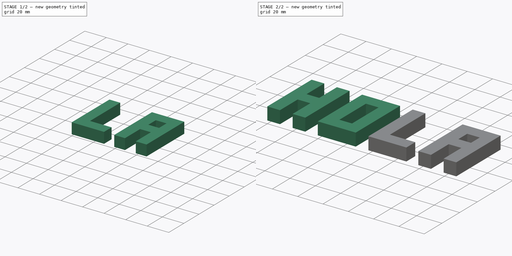
[diagram: build sequence overview — one tinted view per stage of 2, left to right]
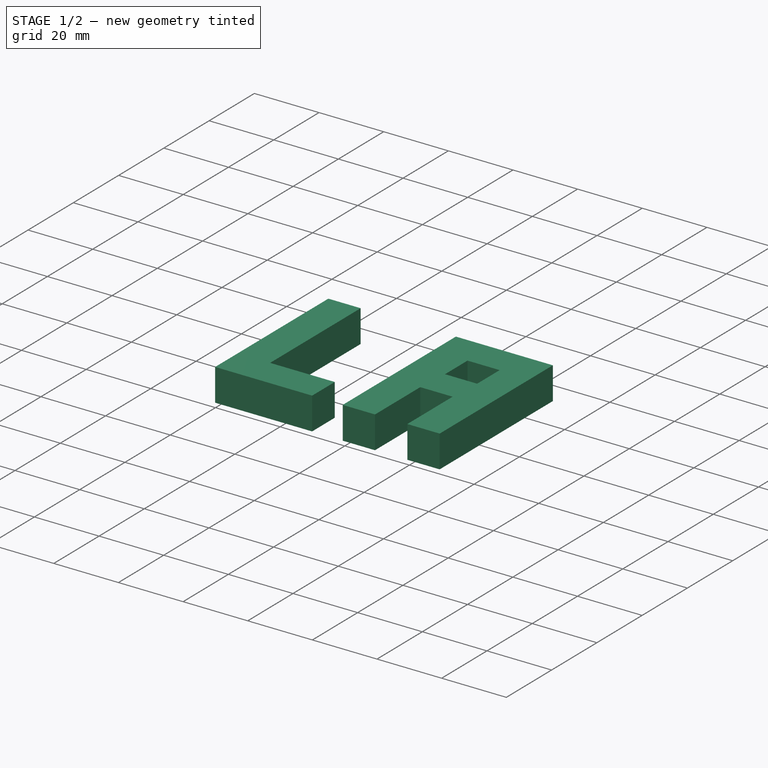
[diagram: stage 1 of 2 — iso view after this stage's code; geometry added in this stage tinted green]
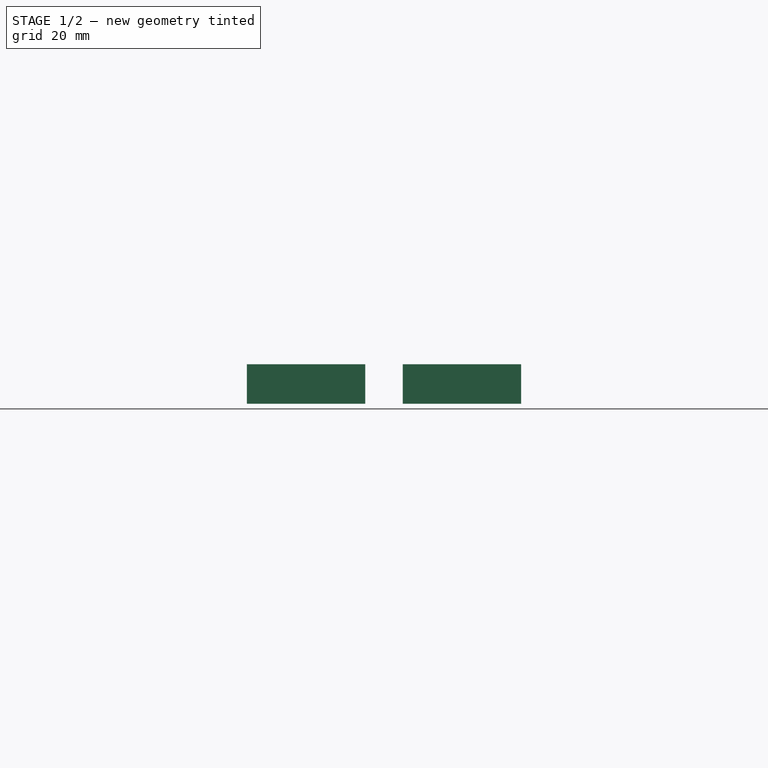
[diagram: stage 1 of 2 — front view after this stage's code; geometry added in this stage tinted green]
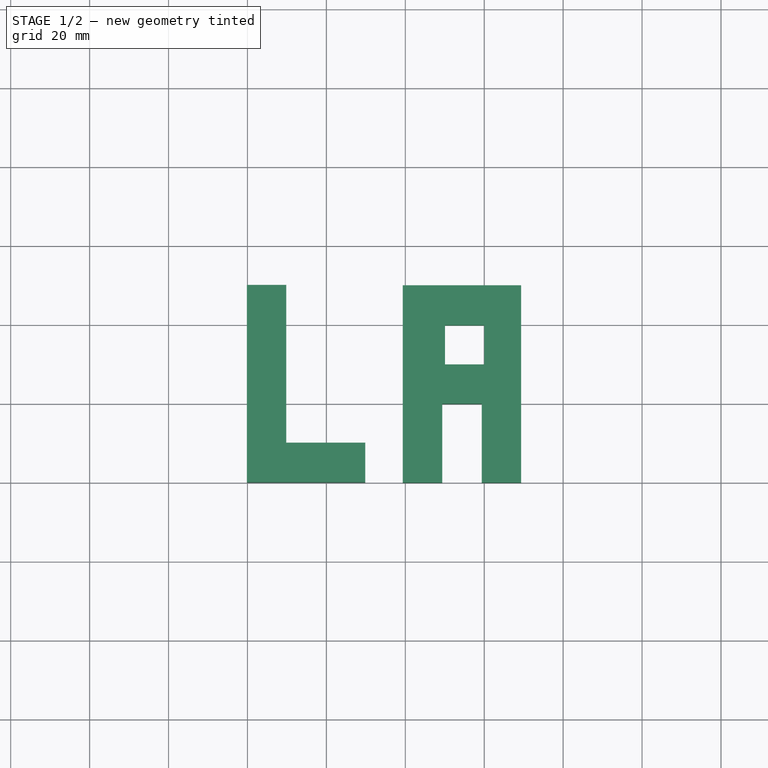
[diagram: stage 1 of 2 — top view after this stage's code; geometry added in this stage tinted green]
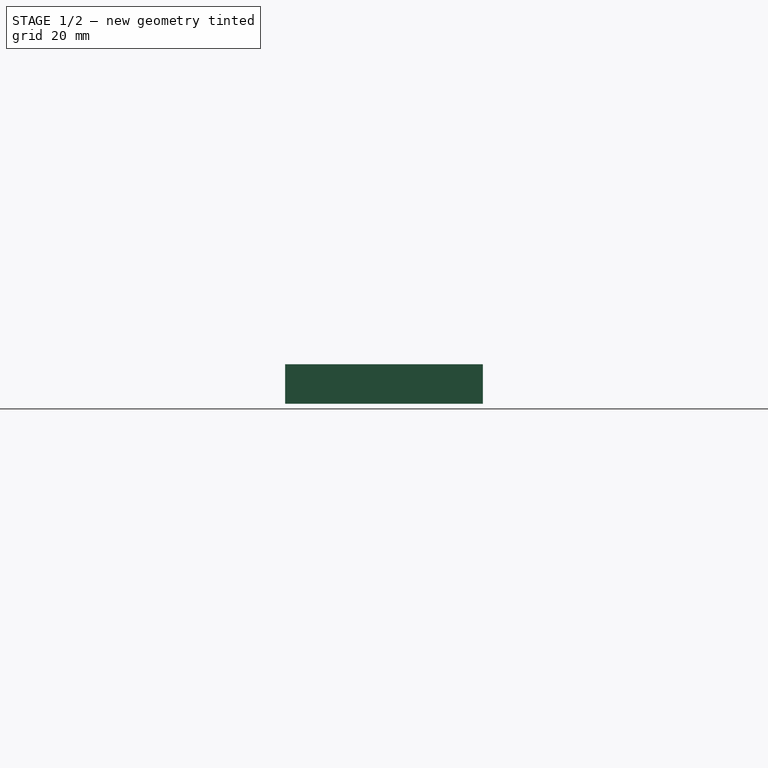
[diagram: stage 1 of 2 — right view after this stage's code; geometry added in this stage tinted green]
FCSTD DOCUMENT  (FreeCAD 0.21R33694 (Git))
Label: OJT1_T018_Hola
License: All rights reserved
LicenseURL: https://en.wikipedia.org/wiki/All_rights_reserved
objects: Sketcher::SketchObject×4, PartDesign::Pad×4, PartDesign::Body×4
note: 16 computed .brp shape members not serialized (recipe doc carries the construction recipe); baked Part::Feature solids carry a one-line shape summary decoded from their .brp

FEATURE [PartDesign::Body] Body
  Group = -> [Sketch,Pad001]
  Origin = -> Origin
  Tip = -> Pad001
FEATURE [PartDesign::Pad] Pad002
  Direction = (0,0,1)
  Length = 10
  Length2 = 10
  Profile = -> Sketch008
  ReferenceAxis = -> Sketch008 [N_Axis]
  Type = 0
FEATURE [PartDesign::Body] Body002
  Group = -> [Sketch008,Pad002]
  Origin = -> Origin002
  Tip = -> Pad002
FEATURE [PartDesign::Pad] Pad003
  Direction = (0,0,1)
  Length = 10
  Length2 = 10
  Profile = -> Sketch012
  ReferenceAxis = -> Sketch012 [N_Axis]
  Type = 0
FEATURE [PartDesign::Body] Body003
  Group = -> [Sketch012,Pad003]
  Origin = -> Origin003
  Tip = -> Pad003
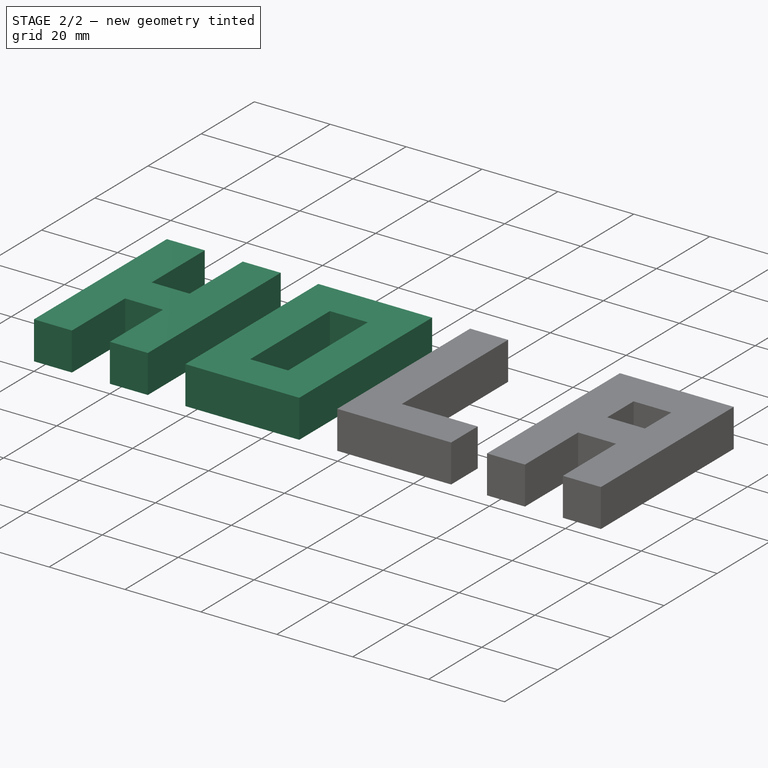
[diagram: stage 2 of 2 — iso view after this stage's code; geometry added in this stage tinted green]
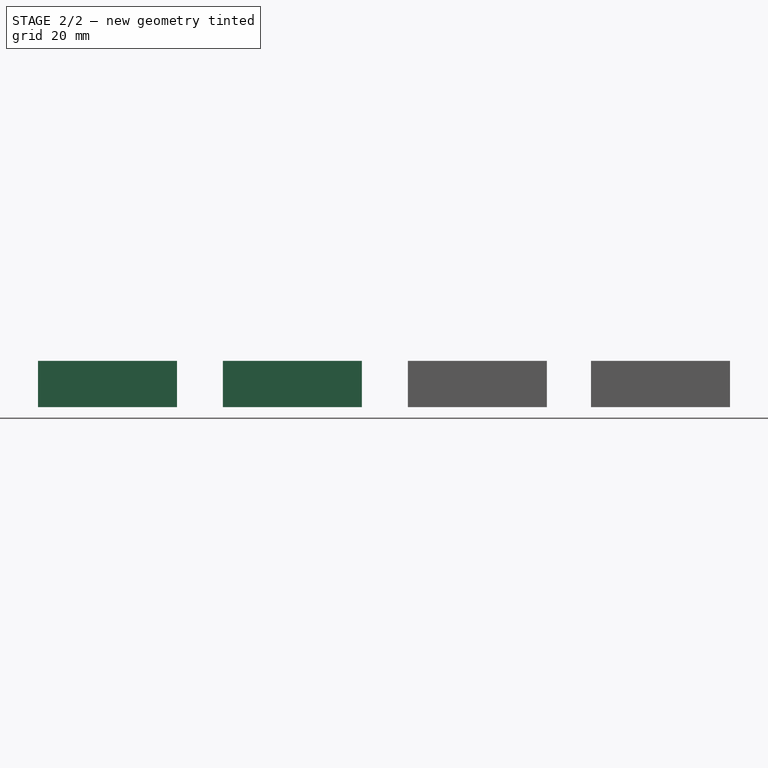
[diagram: stage 2 of 2 — front view after this stage's code; geometry added in this stage tinted green]
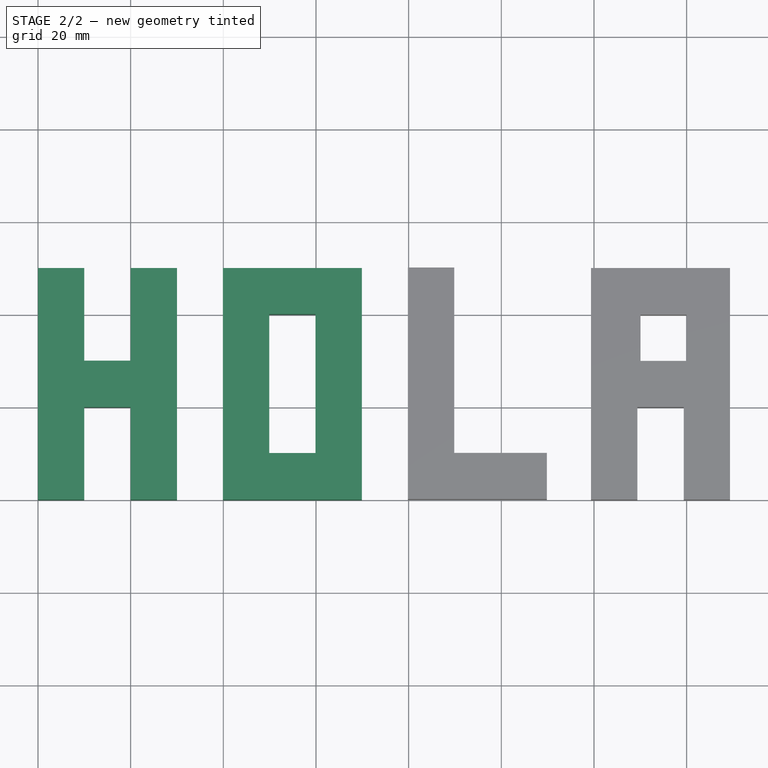
[diagram: stage 2 of 2 — top view after this stage's code; geometry added in this stage tinted green]
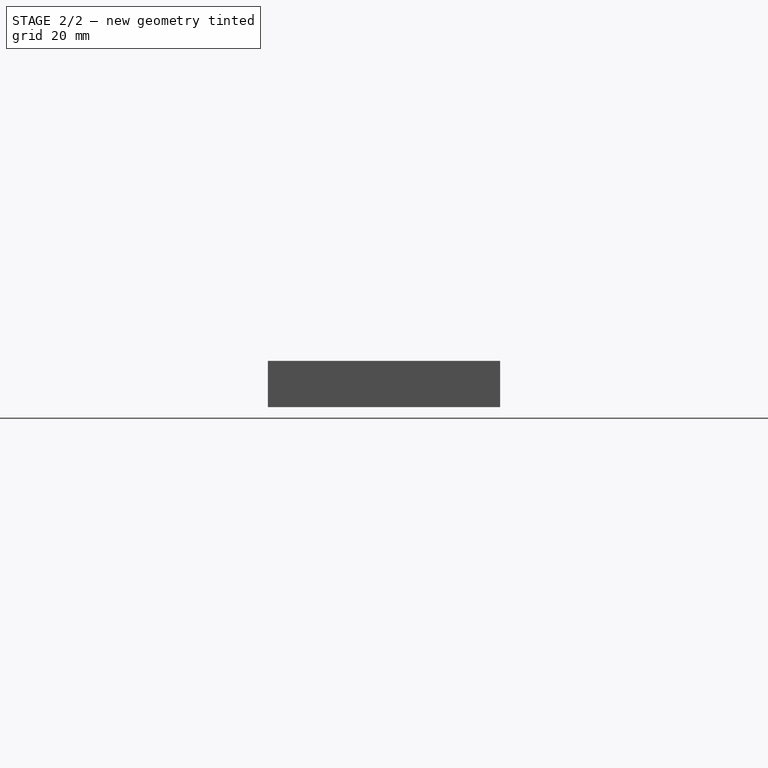
[diagram: stage 2 of 2 — right view after this stage's code; geometry added in this stage tinted green]
FEATURE [Sketcher::SketchObject] Sketch
  FullyConstrained = true
  MapMode = 5
  Support = -> [XY_Plane]
  sketch-geometry (12):
    g0: LineSegment StartX=0 StartY=50 StartZ=0 EndX=0 EndY=0 EndZ=0
    g1: LineSegment StartX=0 StartY=0 StartZ=0 EndX=10 EndY=0 EndZ=0
    g2: LineSegment StartX=10 StartY=0 StartZ=0 EndX=10 EndY=20 EndZ=0
    g3: LineSegment StartX=10 StartY=20 StartZ=0 EndX=20 EndY=20 EndZ=0
    g4: LineSegment StartX=20 StartY=20 StartZ=0 EndX=20 EndY=0 EndZ=0
    g5: LineSegment StartX=20 StartY=-1.2e-15 StartZ=0 EndX=30 EndY=-1.2e-15 EndZ=0
    g6: LineSegment StartX=30 StartY=-1.2e-15 StartZ=0 EndX=30 EndY=50 EndZ=0
    g7: LineSegment StartX=30 StartY=50 StartZ=0 EndX=20 EndY=50 EndZ=0
    g8: LineSegment StartX=20 StartY=50 StartZ=0 EndX=20 EndY=30 EndZ=0
    g9: LineSegment StartX=20 StartY=30 StartZ=0 EndX=10 EndY=30 EndZ=0
    g10: LineSegment StartX=10 StartY=30 StartZ=0 EndX=10 EndY=50 EndZ=0
    g11: LineSegment StartX=10 StartY=50 StartZ=0 EndX=0 EndY=50 EndZ=0
  constraints (35):
    c: Horizontal(g1)
    c: Coincident(g1,g2)
    c: Vertical(g2)
    c: Coincident(g2,g3)
    c: Horizontal(g3)
    c: Coincident(g3,g4)
    c: Vertical(g4)
    c: Coincident(g4,g5)
    c: Horizontal(g5)
    c: Coincident(g5,g6)
    c: Vertical(g6)
    c: Coincident(g6,g7)
    c: Horizontal(g7)
    c: Coincident(g7,g8)
    c: Vertical(g8)
    c: Coincident(g8,g9)
    c: Horizontal(g9)
    c: Coincident(g9,g10)
    c: Vertical(g10)
    c: Coincident(g10,g11)
    c: Coincident(g11,g0)
    c: Horizontal(g11)
    c: DistanceY(g0,g0) = 50
    c: DistanceX(g11,g11) = 10
    c: Equal(g11,g7)
    c: Equal(g7,g1)
    c: Equal(g5,g7)
    c: Coincident(g0,g1)
    c: Vertical(g0)
    c: Equal(g0,g6)
    c: DistanceY(g10,g10) = 20
    c: Equal(g10,g8)
    c: Equal(g2,g10)
    c: Coincident(g0,g-1)
    c: DistanceX(g9,g9) = 10
FEATURE [Sketcher::SketchObject] Sketch005
  FullyConstrained = false
  MapMode = 5
  Support = -> [XY_Plane001]
  sketch-geometry (8):
    g0: LineSegment StartX=39.8983 StartY=50 StartZ=0 EndX=69.8983 EndY=50 EndZ=0
    g1: LineSegment StartX=69.8983 StartY=50 StartZ=0 EndX=69.8983 EndY=0 EndZ=0
    g2: LineSegment StartX=69.8983 StartY=0 StartZ=0 EndX=39.8983 EndY=0 EndZ=0
    g3: LineSegment StartX=39.8983 StartY=0 StartZ=0 EndX=39.8983 EndY=50 EndZ=0
    g4: LineSegment StartX=49.9039 StartY=40.0724 StartZ=0 EndX=59.9039 EndY=40.0724 EndZ=0
    g5: LineSegment StartX=59.9039 StartY=40.0724 StartZ=0 EndX=59.9039 EndY=10.0724 EndZ=0
    g6: LineSegment StartX=59.9039 StartY=10.0724 StartZ=0 EndX=49.9039 EndY=10.0724 EndZ=0
    g7: LineSegment StartX=49.9039 StartY=10.0724 StartZ=0 EndX=49.9039 EndY=40.0724 EndZ=0
  constraints (21):
    c: Coincident(g0,g1)
    c: Coincident(g1,g2)
    c: Coincident(g2,g3)
    c: Coincident(g3,g0)
    c: Horizontal(g0)
    c: Horizontal(g2)
    c: Vertical(g1)
    c: Vertical(g3)
    c: PointOnObject(g1,g-1)
    c: DistanceX(g0,g0) = 30
    c: DistanceY(g3,g3) = 50
    c: Coincident(g4,g5)
    c: Coincident(g5,g6)
    c: Coincident(g6,g7)
    c: Coincident(g7,g4)
    c: Horizontal(g4)
    c: Horizontal(g6)
    c: Vertical(g5)
    c: Vertical(g7)
    c: DistanceX(g4,g4) = 10
    c: DistanceY(g5,g5) = 30
FEATURE [Sketcher::SketchObject] Sketch008
  FullyConstrained = false
  MapMode = 5
  Support = -> [XY_Plane002]
  sketch-geometry (6):
    g0: LineSegment StartX=79.8369 StartY=50.1018 StartZ=0 EndX=79.8369 EndY=0.101835 EndZ=0
    g1: LineSegment StartX=79.8369 StartY=0.101835 StartZ=0 EndX=109.837 EndY=0.101835 EndZ=0
    g2: LineSegment StartX=109.837 StartY=0.101835 StartZ=0 EndX=109.837 EndY=10.1018 EndZ=0
    g3: LineSegment StartX=109.837 StartY=10.1018 StartZ=0 EndX=89.8369 EndY=10.1018 EndZ=0
    g4: LineSegment StartX=89.8369 StartY=10.1018 StartZ=0 EndX=89.8369 EndY=50.1018 EndZ=0
    g5: LineSegment StartX=89.8369 StartY=50.1018 StartZ=0 EndX=79.8369 EndY=50.1018 EndZ=0
  constraints (16):
    c: Vertical(g0)
    c: Coincident(g0,g1)
    c: Horizontal(g1)
    c: Coincident(g1,g2)
    c: Vertical(g2)
    c: Coincident(g2,g3)
    c: Horizontal(g3)
    c: Coincident(g3,g4)
    c: Vertical(g4)
    c: Coincident(g4,g5)
    c: Coincident(g5,g0)
    c: Horizontal(g5)
    c: DistanceY(g0,g0) = 50
    c: DistanceX(g5,g5) = 10
    c: DistanceX(g1,g1) = 30
    c: DistanceY(g4,g4) = 40
FEATURE [Sketcher::SketchObject] Sketch012
  FullyConstrained = false
  MapMode = 5
  Support = -> [XY_Plane003]
  sketch-geometry (12):
    g0: LineSegment StartX=119.365 StartY=0 StartZ=0 EndX=119.365 EndY=50 EndZ=0
    g1: LineSegment StartX=119.365 StartY=50 StartZ=0 EndX=149.365 EndY=50 EndZ=0
    g2: LineSegment StartX=149.365 StartY=50 StartZ=0 EndX=149.365 EndY=0 EndZ=0
    g3: LineSegment StartX=149.365 StartY=0 StartZ=0 EndX=139.365 EndY=0 EndZ=0
    g4: LineSegment StartX=139.365 StartY=0 StartZ=0 EndX=139.365 EndY=19.9983 EndZ=0
    g5: LineSegment StartX=139.365 StartY=19.9983 StartZ=0 EndX=129.365 EndY=19.9983 EndZ=0
    g6: LineSegment StartX=129.365 StartY=19.9983 StartZ=0 EndX=129.365 EndY=0 EndZ=0
    g7: LineSegment StartX=129.365 StartY=0 StartZ=0 EndX=119.365 EndY=0 EndZ=0
    g8: LineSegment StartX=130.044 StartY=39.8999 StartZ=0 EndX=139.991 EndY=39.8999 EndZ=0
    g9: LineSegment StartX=139.991 StartY=39.8999 StartZ=0 EndX=139.991 EndY=29.9532 EndZ=0
    g10: LineSegment StartX=139.991 StartY=29.9532 StartZ=0 EndX=130.044 EndY=29.9532 EndZ=0
    g11: LineSegment StartX=130.044 StartY=29.9532 StartZ=0 EndX=130.044 EndY=39.8999 EndZ=0
  constraints (30):
    c: PointOnObject(g0,g-1)
    c: Vertical(g0)
    c: Coincident(g0,g1)
    c: Horizontal(g1)
    c: Coincident(g1,g2)
    c: PointOnObject(g2,g-1)
    c: Vertical(g2)
    c: Coincident(g2,g3)
    c: PointOnObject(g3,g-1)
    c: Coincident(g3,g4)
    c: Vertical(g4)
    c: Coincident(g4,g5)
    c: Horizontal(g5)
    c: Coincident(g5,g6)
    c: PointOnObject(g6,g-1)
    c: Vertical(g6)
    c: Coincident(g6,g7)
    c: Coincident(g7,g0)
    c: DistanceY(g0,g0) = 50
    c: DistanceX(g1,g1) = 30
    c: DistanceX(g7,g7) = 10
    c: Equal(g3,g7)
    c: Coincident(g8,g9)
    c: Coincident(g9,g10)
    c: Coincident(g10,g11)
    c: Coincident(g11,g8)
    c: Horizontal(g8)
    c: Horizontal(g10)
    c: Vertical(g9)
    c: Vertical(g11)
FEATURE [PartDesign::Pad] Pad
  Direction = (0,0,1)
  Length = 10
  Length2 = 10
  Profile = -> Sketch005
  ReferenceAxis = -> Sketch005 [N_Axis]
  Type = 0
FEATURE [PartDesign::Body] Body001
  Group = -> [Sketch005,Pad]
  Origin = -> Origin001
  Tip = -> Pad
FEATURE [PartDesign::Pad] Pad001
  Direction = (0,0,1)
  Length = 10
  Length2 = 10
  Profile = -> Sketch
  ReferenceAxis = -> Sketch [N_Axis]
  Type = 0
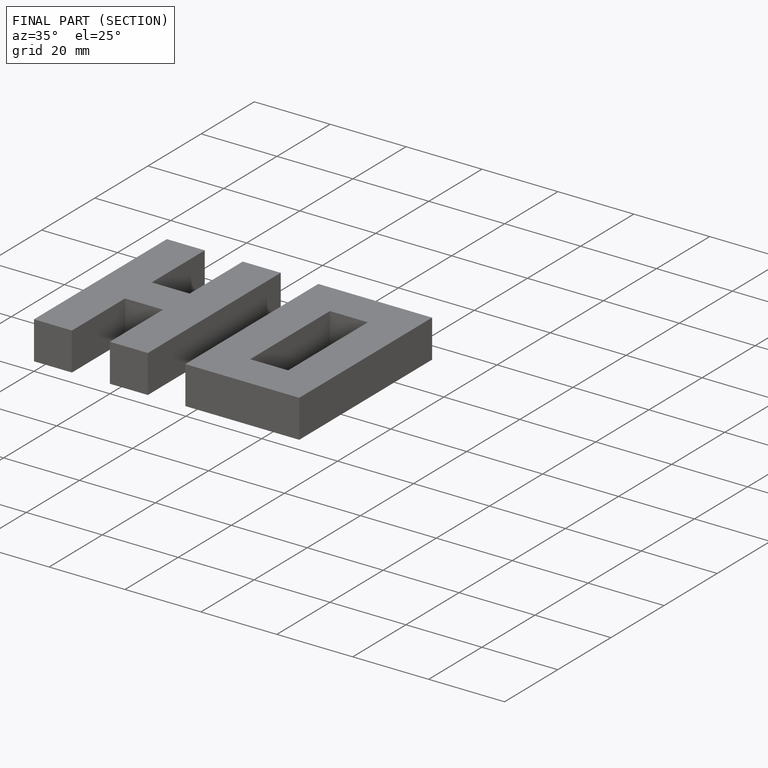
[diagram: finished part — half-section view (interior)]
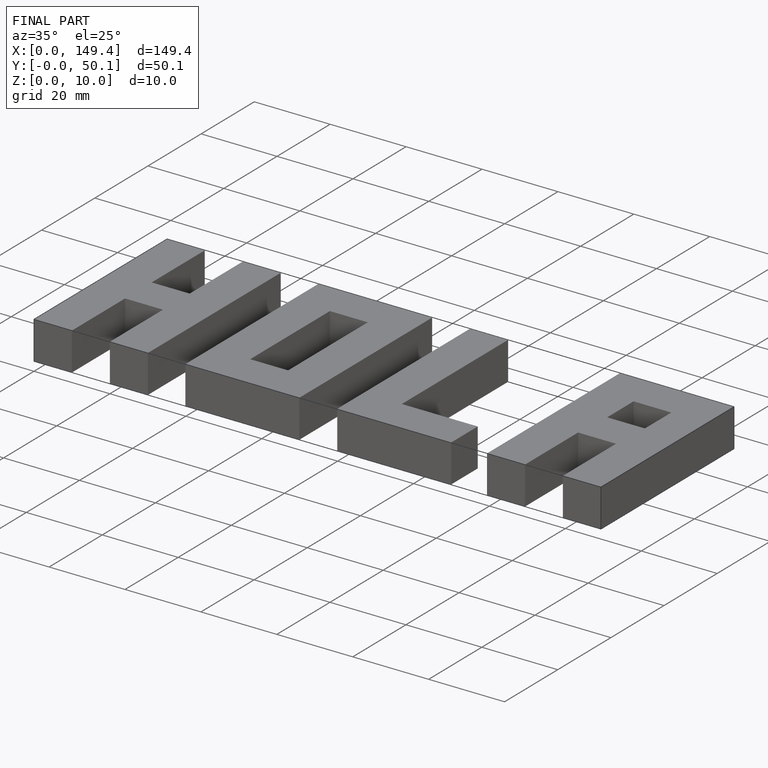
[diagram: finished part — iso view with bounding-box wireframe]
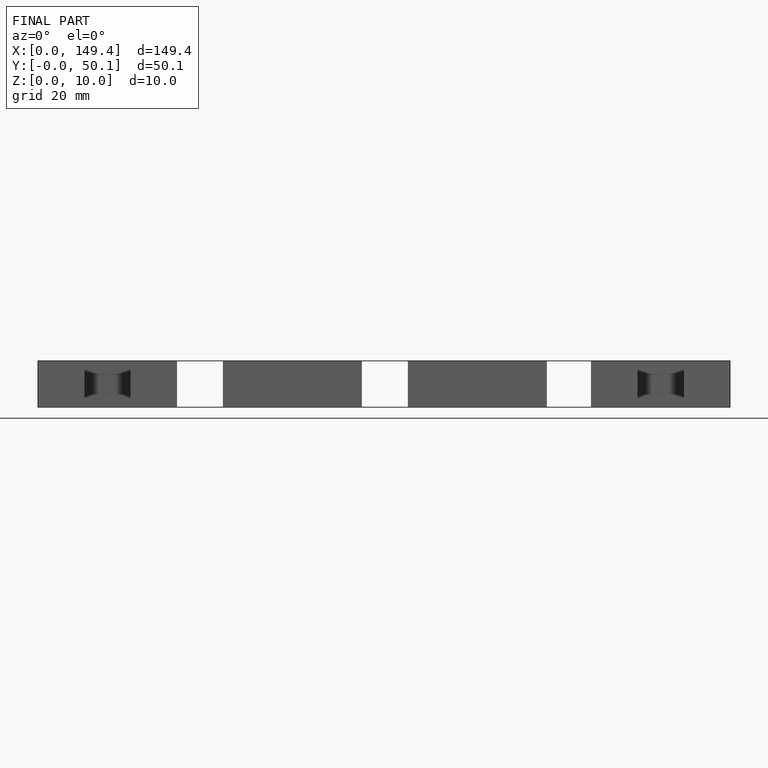
[diagram: finished part — front view with bounding-box wireframe]
